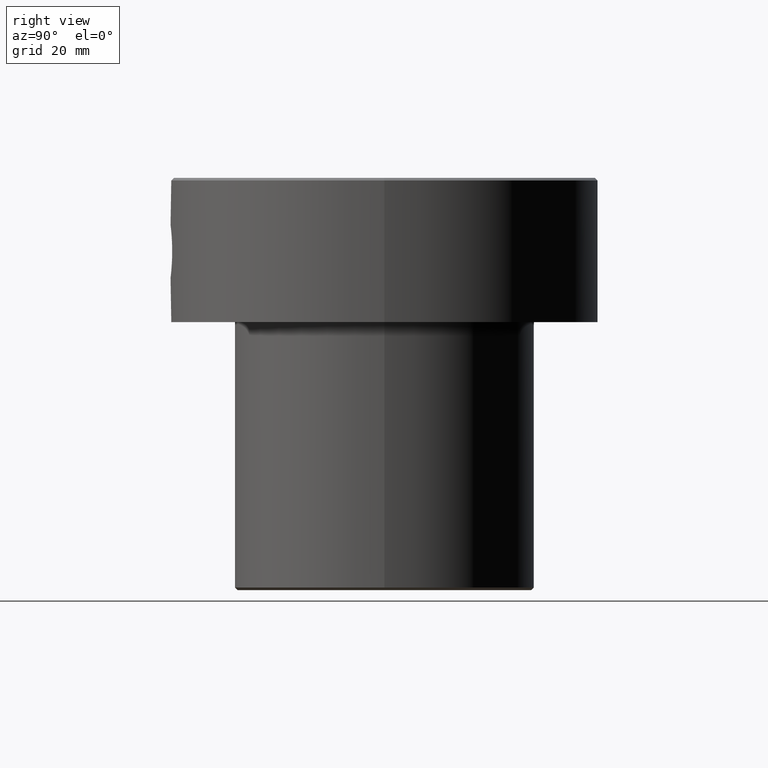
[diagram: clean part render]
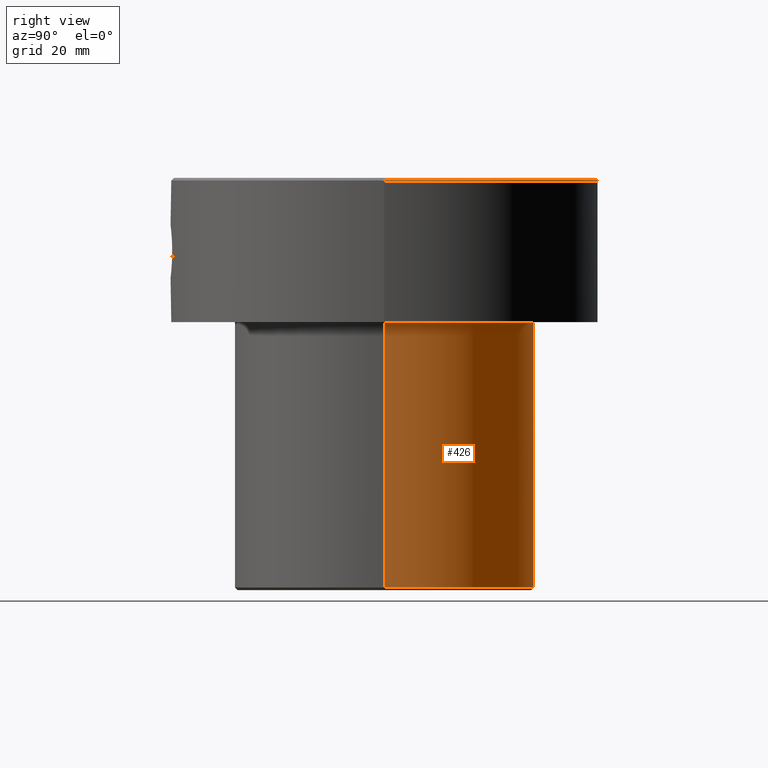
[diagram: same view with one face highlighted and labeled with its STEP entity id]
A machine part, right view. The second image highlights one B-rep face of the part: STEP entity #426.
In plain terms, the highlighted cylindrical surface (partial cylindrical patch) has radius 29 mm, axis along (-0, -0, 1).
Its self-contained STEP definition (entity closure, byte-faithful):
#33 = CARTESIAN_POINT ( 'NONE',  ( 0.000000000000000000, 0.000000000000000000, -27.99999999999999645 ) ) ;
#68 = FACE_OUTER_BOUND ( 'NONE', #484, .T. ) ;
#129 = VERTEX_POINT ( 'NONE', #736 ) ;
#145 = DIRECTION ( 'NONE',  ( -1.000000000000000000, 0.000000000000000000, 0.000000000000000000 ) ) ;
#167 = CARTESIAN_POINT ( 'NONE',  ( 29.00000000000000000, 0.000000000000000000, 0.000000000000000000 ) ) ;
#210 = LINE ( 'NONE', #596, #1156 ) ;
#290 = ORIENTED_EDGE ( 'NONE', *, *, #431, .F. ) ;
#327 = CARTESIAN_POINT ( 'NONE',  ( -29.00000000000000000, 3.551475717527324030E-15, -79.50000000000002842 ) ) ;
#356 = DIRECTION ( 'NONE',  ( -0.000000000000000000, -0.000000000000000000, 1.000000000000000000 ) ) ;
#426 = ADVANCED_FACE ( 'NONE', ( #68 ), #1244, .T. ) ;
#431 = EDGE_CURVE ( 'NONE', #973, #1028, #1052, .T. ) ;
#470 = DIRECTION ( 'NONE',  ( -0.000000000000000000, -0.000000000000000000, 1.000000000000000000 ) ) ;
#476 = ORIENTED_EDGE ( 'NONE', *, *, #624, .T. ) ;
#484 = EDGE_LOOP ( 'NONE', ( #476, #554, #954, #290 ) ) ;
#511 = AXIS2_PLACEMENT_3D ( 'NONE', #1213, #356, #145 ) ;
#554 = ORIENTED_EDGE ( 'NONE', *, *, #1207, .T. ) ;
#596 = CARTESIAN_POINT ( 'NONE',  ( -29.00000000000000000, 3.551475717527324030E-15, 0.000000000000000000 ) ) ;
#607 = AXIS2_PLACEMENT_3D ( 'NONE', #837, #470, #844 ) ;
#624 = EDGE_CURVE ( 'NONE', #973, #662, #1136, .T. ) ;
#653 = DIRECTION ( 'NONE',  ( -0.000000000000000000, -0.000000000000000000, 1.000000000000000000 ) ) ;
#662 = VERTEX_POINT ( 'NONE', #327 ) ;
#680 = CIRCLE ( 'NONE', #976, 29.00000000000000000 ) ;
#703 = CARTESIAN_POINT ( 'NONE',  ( 29.00000000000000000, 0.000000000000000000, -79.50000000000002842 ) ) ;
#736 = CARTESIAN_POINT ( 'NONE',  ( -29.00000000000000000, 3.551475717527324030E-15, -27.99999999999999645 ) ) ;
#750 = VECTOR ( 'NONE', #653, 1000.000000000000000 ) ;
#794 = DIRECTION ( 'NONE',  ( -0.000000000000000000, -0.000000000000000000, 1.000000000000000000 ) ) ;
#837 = CARTESIAN_POINT ( 'NONE',  ( 0.000000000000000000, 0.000000000000000000, 0.000000000000000000 ) ) ;
#844 = DIRECTION ( 'NONE',  ( 1.000000000000000000, 0.000000000000000000, 0.000000000000000000 ) ) ;
#873 = DIRECTION ( 'NONE',  ( 1.000000000000000000, 0.000000000000000000, 0.000000000000000000 ) ) ;
#954 = ORIENTED_EDGE ( 'NONE', *, *, #1191, .F. ) ;
#973 = VERTEX_POINT ( 'NONE', #703 ) ;
#976 = AXIS2_PLACEMENT_3D ( 'NONE', #33, #1173, #873 ) ;
#1016 = CARTESIAN_POINT ( 'NONE',  ( 29.00000000000000000, 0.000000000000000000, -27.99999999999999645 ) ) ;
#1028 = VERTEX_POINT ( 'NONE', #1016 ) ;
#1052 = LINE ( 'NONE', #167, #750 ) ;
#1136 = CIRCLE ( 'NONE', #511, 29.00000000000000000 ) ;
#1156 = VECTOR ( 'NONE', #794, 1000.000000000000000 ) ;
#1173 = DIRECTION ( 'NONE',  ( -0.000000000000000000, -0.000000000000000000, 1.000000000000000000 ) ) ;
#1191 = EDGE_CURVE ( 'NONE', #1028, #129, #680, .T. ) ;
#1207 = EDGE_CURVE ( 'NONE', #662, #129, #210, .T. ) ;
#1213 = CARTESIAN_POINT ( 'NONE',  ( 0.000000000000000000, 0.000000000000000000, -79.50000000000002842 ) ) ;
#1244 = CYLINDRICAL_SURFACE ( 'NONE', #607, 29.00000000000000000 ) ;